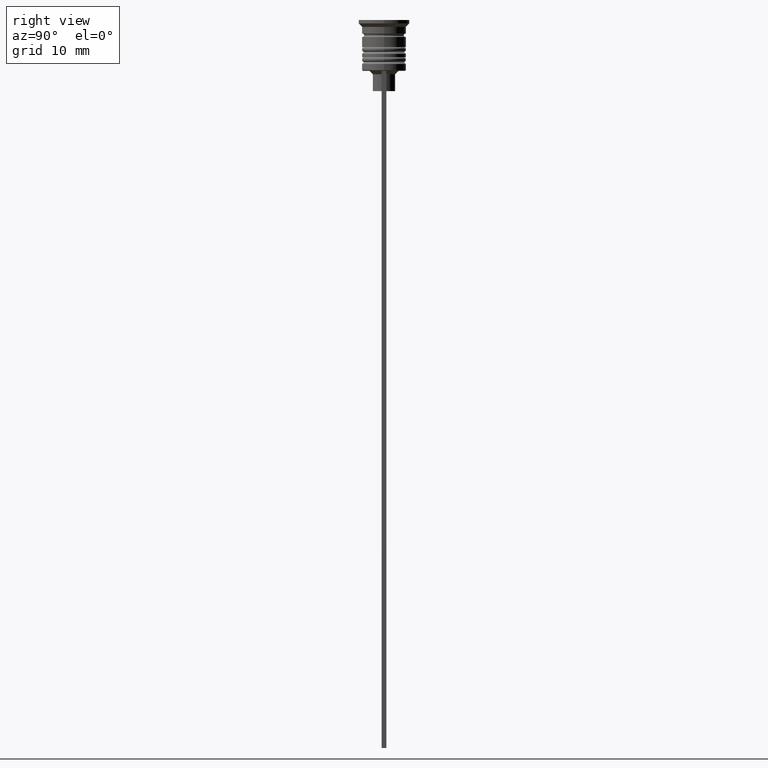
[diagram: clean part render]
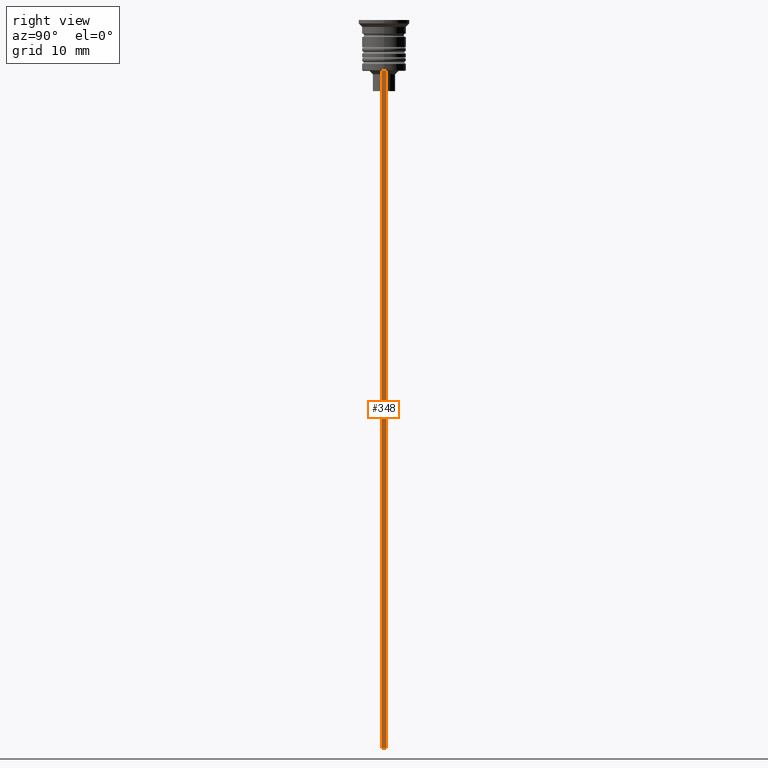
[diagram: same view with one face highlighted and labeled with its STEP entity id]
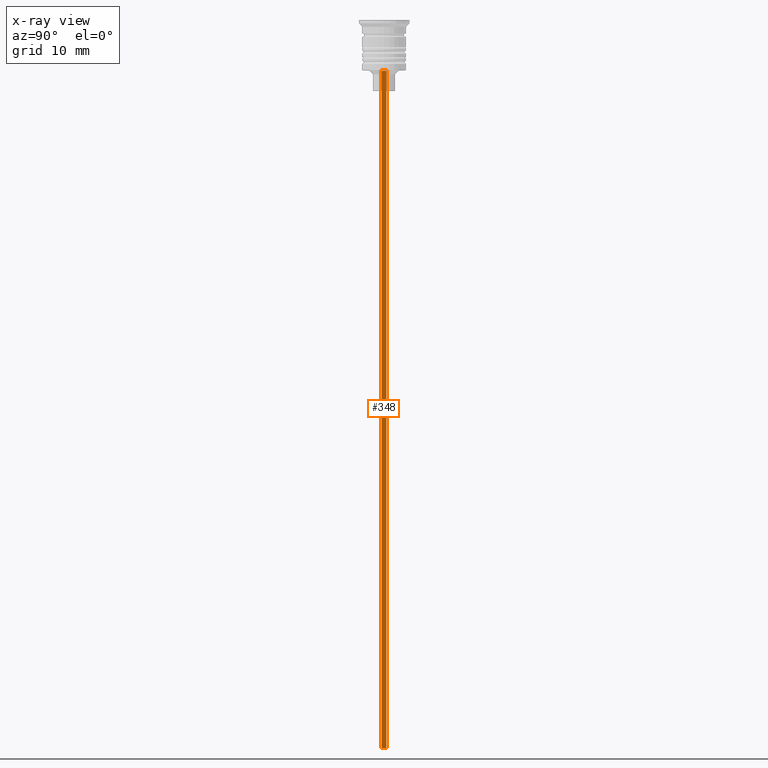
[diagram: x-ray of the same camera — body ghosted, the highlighted face saturated]
A machine part, right view. The second image highlights one B-rep face of the part: STEP entity #348.
The next image is the same camera in x-ray: the body ghosted, the highlighted face saturated — about 0% of this face is hidden behind the body in this view.
In plain terms, the highlighted planar face has unit normal (-1, 0, 0).
Its self-contained STEP definition (entity closure, byte-faithful):
#95 = LINE ( 'NONE', #1785, #1965 ) ;
#126 = CARTESIAN_POINT ( 'NONE',  ( 2.999999999999995559, -0.3500000000000000333, -7.500000000000000000 ) ) ;
#258 = CARTESIAN_POINT ( 'NONE',  ( 2.999999999999995559, -0.3500000000000000333, -107.5000000000000000 ) ) ;
#348 = ADVANCED_FACE ( 'NONE', ( #1256 ), #1059, .F. ) ;
#543 = EDGE_CURVE ( 'NONE', #791, #822, #95, .T. ) ;
#592 = EDGE_CURVE ( 'NONE', #822, #631, #1934, .T. ) ;
#631 = VERTEX_POINT ( 'NONE', #1525 ) ;
#715 = ORIENTED_EDGE ( 'NONE', *, *, #1176, .T. ) ;
#742 = CARTESIAN_POINT ( 'NONE',  ( 2.999999999999995559, 0.3500000000000000333, -1.459304675784417915 ) ) ;
#791 = VERTEX_POINT ( 'NONE', #940 ) ;
#822 = VERTEX_POINT ( 'NONE', #1334 ) ;
#852 = EDGE_CURVE ( 'NONE', #1367, #631, #1804, .T. ) ;
#940 = CARTESIAN_POINT ( 'NONE',  ( 2.999999999999995559, -0.3500000000000000333, -7.500000000000000000 ) ) ;
#951 = ORIENTED_EDGE ( 'NONE', *, *, #592, .T. ) ;
#968 = DIRECTION ( 'NONE',  ( 0.000000000000000000, -1.000000000000000000, 0.000000000000000000 ) ) ;
#1009 = CARTESIAN_POINT ( 'NONE',  ( 2.999999999999995559, 0.3500000000000000333, -7.500000000000000000 ) ) ;
#1044 = ORIENTED_EDGE ( 'NONE', *, *, #543, .T. ) ;
#1059 = PLANE ( 'NONE',  #2178 ) ;
#1080 = DIRECTION ( 'NONE',  ( -1.000000000000000000, 0.000000000000000000, 0.000000000000000000 ) ) ;
#1176 = EDGE_CURVE ( 'NONE', #1367, #791, #2126, .T. ) ;
#1256 = FACE_OUTER_BOUND ( 'NONE', #2048, .T. ) ;
#1274 = DIRECTION ( 'NONE',  ( 0.000000000000000000, 1.000000000000000000, 0.000000000000000000 ) ) ;
#1334 = CARTESIAN_POINT ( 'NONE',  ( 2.999999999999995559, -0.3500000000000000333, -107.5000000000000000 ) ) ;
#1367 = VERTEX_POINT ( 'NONE', #1009 ) ;
#1403 = CARTESIAN_POINT ( 'NONE',  ( 2.999999999999995559, -0.3500000000000000333, -1.459304675784417915 ) ) ;
#1409 = VECTOR ( 'NONE', #1274, 1000.000000000000000 ) ;
#1416 = DIRECTION ( 'NONE',  ( 0.000000000000000000, 0.000000000000000000, -1.000000000000000000 ) ) ;
#1439 = DIRECTION ( 'NONE',  ( 0.000000000000000000, 0.000000000000000000, -1.000000000000000000 ) ) ;
#1525 = CARTESIAN_POINT ( 'NONE',  ( 2.999999999999995559, 0.3500000000000000333, -107.5000000000000000 ) ) ;
#1589 = DIRECTION ( 'NONE',  ( 0.000000000000000000, 0.000000000000000000, 1.000000000000000000 ) ) ;
#1755 = VECTOR ( 'NONE', #968, 1000.000000000000000 ) ;
#1785 = CARTESIAN_POINT ( 'NONE',  ( 2.999999999999995559, -0.3500000000000000333, -1.459304675784417915 ) ) ;
#1804 = LINE ( 'NONE', #742, #2003 ) ;
#1905 = ORIENTED_EDGE ( 'NONE', *, *, #852, .F. ) ;
#1934 = LINE ( 'NONE', #258, #1409 ) ;
#1965 = VECTOR ( 'NONE', #1439, 1000.000000000000000 ) ;
#2003 = VECTOR ( 'NONE', #1416, 1000.000000000000000 ) ;
#2048 = EDGE_LOOP ( 'NONE', ( #1905, #715, #1044, #951 ) ) ;
#2126 = LINE ( 'NONE', #126, #1755 ) ;
#2178 = AXIS2_PLACEMENT_3D ( 'NONE', #1403, #1080, #1589 ) ;